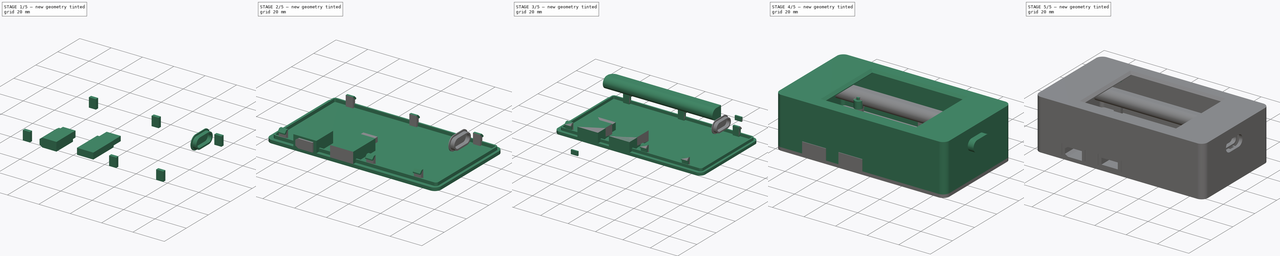
[diagram: build sequence overview — one tinted view per stage of 5, left to right]
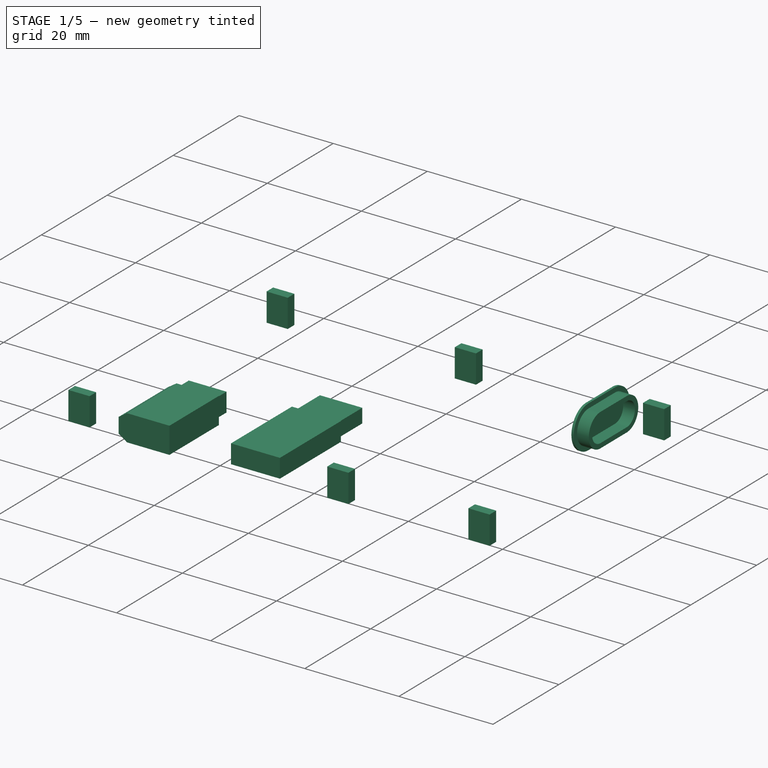
[diagram: stage 1 of 5 — iso view after this stage's code; geometry added in this stage tinted green]
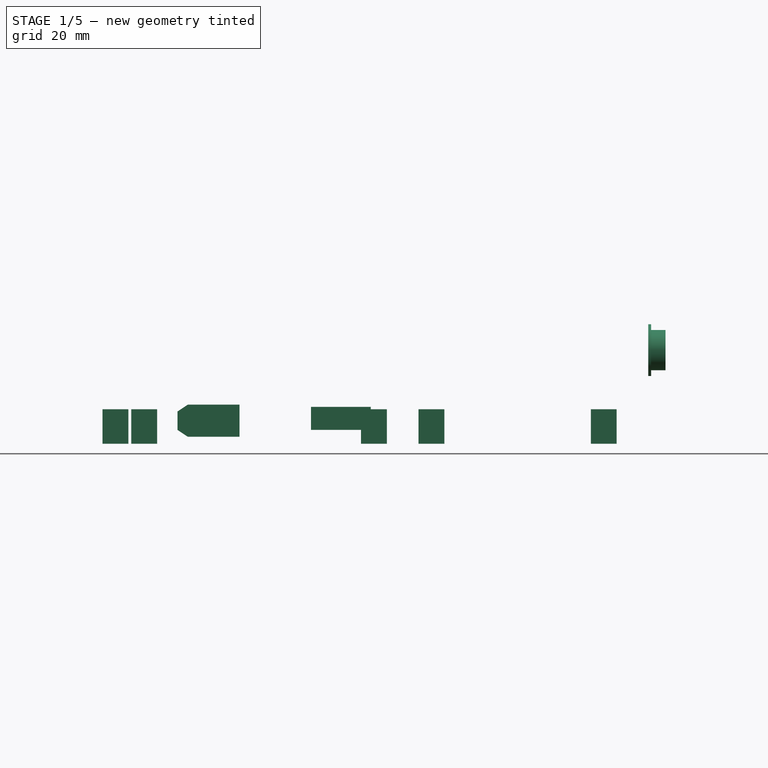
[diagram: stage 1 of 5 — front view after this stage's code; geometry added in this stage tinted green]
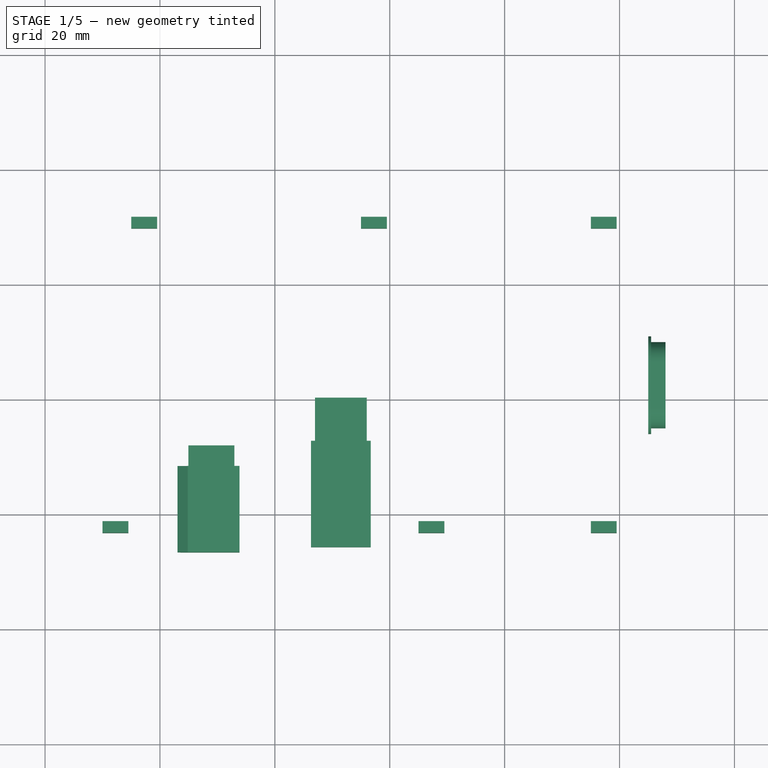
[diagram: stage 1 of 5 — top view after this stage's code; geometry added in this stage tinted green]
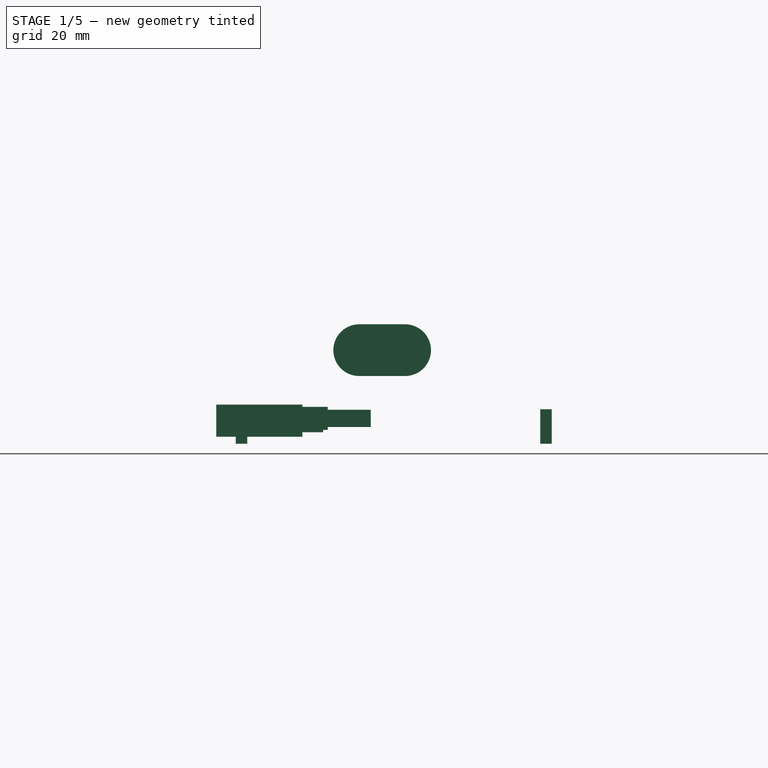
[diagram: stage 1 of 5 — right view after this stage's code; geometry added in this stage tinted green]
FCSTD DOCUMENT  (FreeCAD 1.0R39319 (Git))
Label: ServoTester
License: All rights reserved
LicenseURL: http://en.wikipedia.org/wiki/All_rights_reserved
objects: Part::Box×38, Part::MultiFuse×28, Part::Cut×10, Part::Cylinder×9, Part::Fillet×6, Part::Chamfer×4, Sketcher::SketchObject×3, Part::Extrusion×3, Part::Feature×1, Part::Sphere×1
note: 106 computed .brp shape members not serialized (recipe doc carries the construction recipe); baked Part::Feature solids carry a one-line shape summary decoded from their .brp

FEATURE [Sketcher::SketchObject] Sketch001
  ArcFitTolerance = 0
  FullyConstrained = true
  MakeInternals = false
  Placement = pos=(0,0,0) rot=(0.57735,0.57735,0.57735;2.0944rad)
  sketch-geometry (8):
    g0: LineSegment StartX=58.28 StartY=4.78 StartZ=0 EndX=66.28 EndY=4.78 EndZ=0
    g1: LineSegment StartX=58.28 StartY=11.78 StartZ=0 EndX=66.28 EndY=11.78 EndZ=0
    g2: ArcOfCircle CenterX=66.28 CenterY=8.28 CenterZ=0 NormalX=0 NormalY=0 NormalZ=1 AngleXU=0 Radius=3.5 StartAngle=4.71239 EndAngle=7.85398
    g3: ArcOfCircle CenterX=58.28 CenterY=8.28 CenterZ=0 NormalX=0 NormalY=0 NormalZ=1 AngleXU=0 Radius=3.5 StartAngle=1.5708 EndAngle=4.71239
    g4: ArcOfCircle CenterX=58.28 CenterY=8.28 CenterZ=0 NormalX=0 NormalY=0 NormalZ=1 AngleXU=0 Radius=2.5 StartAngle=1.5708 EndAngle=4.71239
    g5: ArcOfCircle CenterX=66.28 CenterY=8.28 CenterZ=0 NormalX=0 NormalY=0 NormalZ=1 AngleXU=0 Radius=2.5 StartAngle=4.71239 EndAngle=7.85398
    g6: LineSegment StartX=58.28 StartY=10.78 StartZ=0 EndX=66.28 EndY=10.78 EndZ=0
    g7: LineSegment StartX=58.28 StartY=5.78 StartZ=0 EndX=66.28 EndY=5.78 EndZ=0
  constraints (22):
    c: Horizontal(g0)
    c: Horizontal(g1)
    c: Equal(g1,g0)
    c: DistanceX(g0,g0) = 8
    c: DistanceX(g0,g1) = 0
    c: DistanceY(g0,g1) = 7
    c: Coincident(g2,g0)
    c: Coincident(g2,g1)
    c: Coincident(g3,g0)
    c: Coincident(g3,g1)
    c: Radius(g2) = 3.5
    c: Radius(g3) = 3.5
    c: DistanceX(g-1,g0) = 58.28
    c: DistanceY(g-1,g0) = 4.78
    c: Coincident(g4,g3)
    c: Coincident(g5,g2)
    c: Tangent(g6,g4) = 1.5708
    c: Tangent(g6,g5) = 1.5708
    c: Tangent(g7,g5) = -1.5708
    c: Tangent(g7,g4) = -1.5708
    c: Horizontal(g6)
    c: Radius(g4) = 2.5
FEATURE [Part::Extrusion] Extrude001
  Base = -> Sketch001
  Dir = (1,0,0)
  DirMode = 2
  FaceMakerClass = Part::FaceMakerBullseye
  FaceMakerMode = 3
  LengthFwd = 3
  LengthRev = 0
  Placement = pos=(145,0,5) rot=(0,0,1;0rad)
  Solid = true
  Symmetric = false
FEATURE [Part::Box] Box086  label="Cubo086"
  AttacherType = Attacher::AttachEngine3D
  Height = 6
  Length = 4.5
  Placement = pos=(-5,1,-5) rot=(0,0,1;0rad)
  Width = 2
FEATURE [Part::Box] Box087  label="Cubo087"
  AttacherType = Attacher::AttachEngine3D
  Height = 6
  Length = 4.5
  Placement = pos=(50,1,-5) rot=(0,0,1;0rad)
  Width = 2
FEATURE [Part::Box] Box088  label="Cubo088"
  AttacherType = Attacher::AttachEngine3D
  Height = 6
  Length = 4.5
  Placement = pos=(80,1,-5) rot=(0,0,1;0rad)
  Width = 2
FEATURE [Part::Box] Box089  label="Cubo089"
  AttacherType = Attacher::AttachEngine3D
  Height = 6
  Length = 4.5
  Placement = pos=(0,-2,-5) rot=(0,0,1;0rad)
  Width = 2
FEATURE [Part::Box] Box090  label="Cubo090"
  AttacherType = Attacher::AttachEngine3D
  Height = 6
  Length = 4.5
  Placement = pos=(40,-2,-5) rot=(0,0,1;0rad)
  Width = 2
FEATURE [Part::Box] Box091  label="Cubo091"
  AttacherType = Attacher::AttachEngine3D
  Height = 6
  Length = 4.5
  Placement = pos=(80,-2,-5) rot=(0,0,1;0rad)
  Width = 2
FEATURE [Part::Box] Box096  label="Cubo096"
  AttacherType = Attacher::AttachEngine3D
  Height = 5.6
  Length = 10.8
  Placement = pos=(19,0,0) rot=(0,0,1;0rad)
  Width = 15
FEATURE [Part::Box] Box097  label="Cubo097"
  AttacherType = Attacher::AttachEngine3D
  Height = 4
  Length = 8
  Placement = pos=(65,42,-1) rot=(0,0,1;0rad)
  Width = 10
FEATURE [Part::Chamfer] Chamfer007
  Base = -> Box096
  EdgeLinks = -> Box096 [Edge2,Edge4]
  Edges = 2 edges: [Edge2 r1=1.2 r2=1.8,Edge4 r1=1.2 r2=1.8]
  Placement = pos=(44.1,33.4,-1.8) rot=(0,0,1;0rad)
FEATURE [Part::MultiFuse] Fusion053
  Placement = pos=(55,35.8,2) rot=(0,0,1;0rad)
  Shapes = -> [Box088,Box086,Box087]
FEATURE [Part::MultiFuse] Fusion054
  Placement = pos=(55,91.8,2) rot=(0,0,1;0rad)
  Shapes = -> [Box091,Box089,Box090]
FEATURE [Part::MultiFuse] Fusion055
  Shapes = -> [Fusion053,Fusion054]
FEATURE [Part::MultiFuse] Fusion058
  Placement = pos=(-0.05,0,0) rot=(0,0,1;0rad)
  Shapes = -> [Box097,Chamfer007]
FEATURE [Part::Box] Box098  label="Cubo098"
  AttacherType = Attacher::AttachEngine3D
  Height = 4
  Length = 10.4
  Placement = pos=(0,0,-0.1) rot=(0,0,1;0rad)
  Width = 18.5
FEATURE [Part::Box] Box099  label="Cubo099"
  AttacherType = Attacher::AttachEngine3D
  Height = 3
  Length = 9
  Placement = pos=(0.7,8,0.4) rot=(0,0,1;0rad)
  Width = 18
FEATURE [Part::MultiFuse] Fusion060
  Placement = pos=(86.3,34.3,-0.5) rot=(0,0,1;0rad)
  Shapes = -> [Box099,Box098]
FEATURE [Part::MultiFuse] Fusion061
  Shapes = -> [Fusion060,Fusion058]
FEATURE [Sketcher::SketchObject] Sketch002
  ArcFitTolerance = 0
  FullyConstrained = true
  MakeInternals = false
  Placement = pos=(0,0,0) rot=(0.57735,0.57735,0.57735;2.0944rad)
  sketch-geometry (4):
    g0: LineSegment StartX=58.28 StartY=3.78 StartZ=0 EndX=66.28 EndY=3.78 EndZ=0
    g1: LineSegment StartX=58.28 StartY=12.78 StartZ=0 EndX=66.28 EndY=12.78 EndZ=0
    g2: ArcOfCircle CenterX=66.28 CenterY=8.28 CenterZ=0 NormalX=0 NormalY=0 NormalZ=1 AngleXU=0 Radius=4.5 StartAngle=4.71239 EndAngle=7.85398
    g3: ArcOfCircle CenterX=58.28 CenterY=8.28 CenterZ=0 NormalX=0 NormalY=0 NormalZ=1 AngleXU=0 Radius=4.5 StartAngle=1.5708 EndAngle=4.71239
  constraints (14):
    c: Horizontal(g0)
    c: Horizontal(g1)
    c: Equal(g1,g0)
    c: DistanceX(g0,g0) = 8
    c: DistanceX(g0,g1) = 0
    c: DistanceY(g0,g1) = 9
    c: Coincident(g2,g0)
    c: Coincident(g2,g1)
    c: Coincident(g3,g0)
    c: Coincident(g3,g1)
    c: Radius(g2) = 4.5
    c: Radius(g3) = 4.5
    c: DistanceX(g-1,g0) = 58.28
    c: DistanceY(g-1,g0) = 3.78
FEATURE [Part::Extrusion] Extrude002
  Base = -> Sketch002
  Dir = (1,0,0)
  DirMode = 2
  FaceMakerClass = Part::FaceMakerBullseye
  FaceMakerMode = 3
  LengthFwd = 0.5
  LengthRev = 0
  Placement = pos=(145,0,5) rot=(0,0,1;0rad)
  Solid = true
  Symmetric = false
FEATURE [Part::MultiFuse] Fusion062  label="USB Tap"
  Shapes = -> [Extrude001,Extrude002]
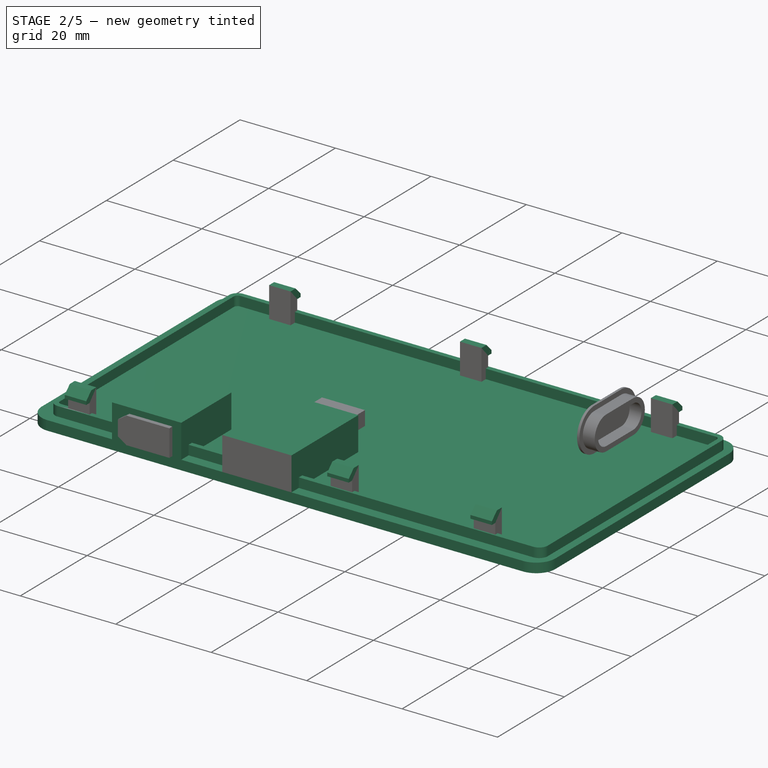
[diagram: stage 2 of 5 — iso view after this stage's code; geometry added in this stage tinted green]
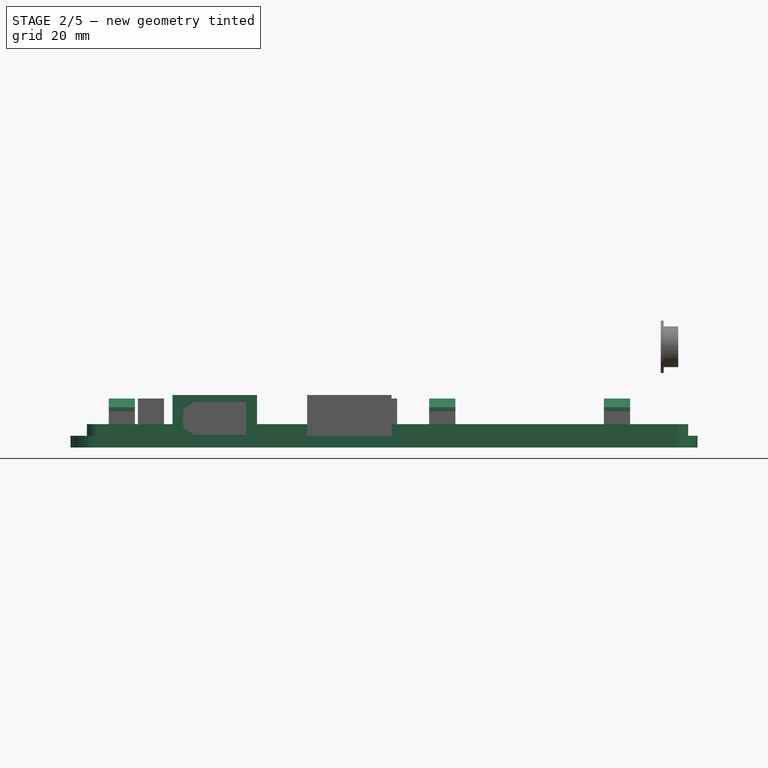
[diagram: stage 2 of 5 — front view after this stage's code; geometry added in this stage tinted green]
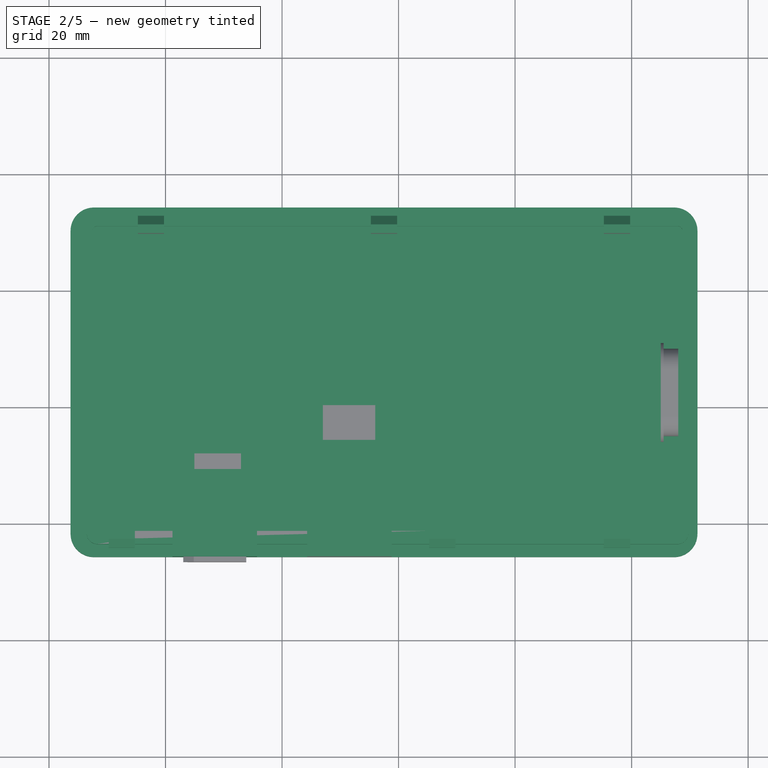
[diagram: stage 2 of 5 — top view after this stage's code; geometry added in this stage tinted green]
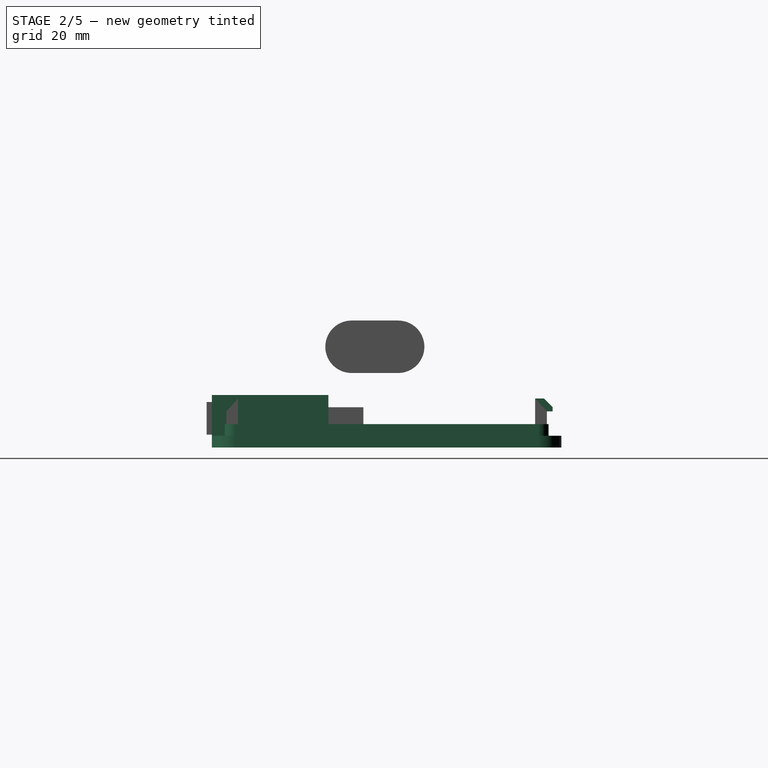
[diagram: stage 2 of 5 — right view after this stage's code; geometry added in this stage tinted green]
FEATURE [Part::Box] Box079  label="Cubo079"
  AttacherType = Attacher::AttachEngine3D
  Height = 2
  Length = 107.6
  Placement = pos=(43.7,34.3,-4) rot=(0,0,1;0rad)
  Width = 60
FEATURE [Part::Box] Box080  label="Cubo080"
  AttacherType = Attacher::AttachEngine3D
  Height = 2.2
  Length = 4.5
  Placement = pos=(-5,0,0.2) rot=(0,0,1;0rad)
  Width = 3
FEATURE [Part::Box] Box081  label="Cubo081"
  AttacherType = Attacher::AttachEngine3D
  Height = 2.2
  Length = 4.5
  Placement = pos=(50,0,0.2) rot=(0,0,1;0rad)
  Width = 3
FEATURE [Part::Box] Box082  label="Cubo082"
  AttacherType = Attacher::AttachEngine3D
  Height = 2.2
  Length = 4.5
  Placement = pos=(80,0,0.2) rot=(0,0,1;0rad)
  Width = 3
FEATURE [Part::Box] Box083  label="Cubo083"
  AttacherType = Attacher::AttachEngine3D
  Height = 2.2
  Length = 4.5
  Placement = pos=(0,-2,0.2) rot=(0,0,1;0rad)
  Width = 3
FEATURE [Part::Box] Box084  label="Cubo084"
  AttacherType = Attacher::AttachEngine3D
  Height = 2.2
  Length = 4.5
  Placement = pos=(40,-2,0.2) rot=(0,0,1;0rad)
  Width = 3
FEATURE [Part::Box] Box085  label="Cubo085"
  AttacherType = Attacher::AttachEngine3D
  Height = 2.2
  Length = 4.5
  Placement = pos=(80,-2,0.2) rot=(0,0,1;0rad)
  Width = 3
FEATURE [Part::Box] Box092  label="Cubo092"
  AttacherType = Attacher::AttachEngine3D
  Height = 2
  Length = 103.2
  Placement = pos=(48.7,34.3,-2) rot=(0,0,1;0rad)
  Width = 55.6
FEATURE [Part::Box] Box093  label="Cubo093"
  AttacherType = Attacher::AttachEngine3D
  Height = 2
  Length = 101.2
  Placement = pos=(49.7,35.3,-2) rot=(0,0,1;0rad)
  Width = 53.6
FEATURE [Part::Box] Box094  label="Cubo094"
  AttacherType = Attacher::AttachEngine3D
  Height = 7
  Length = 14.5
  Placement = pos=(61.2,34.3,-2) rot=(0,0,1;0rad)
  Width = 15
FEATURE [Part::Box] Box095  label="Cubo095"
  AttacherType = Attacher::AttachEngine3D
  Height = 7
  Length = 14.5
  Placement = pos=(84.3,34.3,-2) rot=(0,0,1;0rad)
  Width = 20
FEATURE [Part::Cut] Cut019
  Base = -> Box092
  Tool = -> Box093
FEATURE [Part::Fillet] Fillet015
  Base = -> Box079
  EdgeLinks = -> Box079 [Edge1,Edge3,Edge5,Edge7]
  Edges = 4 edges r=4: [Edge1,Edge3,Edge5,Edge7]
FEATURE [Part::Fillet] Fillet016
  Base = -> Cut019
  EdgeLinks = -> Cut019 [Edge1,Edge3,Edge6,Edge15,Edge21,Edge22,Edge23,Edge24]
  Edges = 8 edges: [Edge1 r=1.8,Edge3 r=1.8,Edge6 r=1.8,Edge15 r=1.8,Edge21 r=0.8,Edge22 r=0.8,Edge23 r=0.8,Edge24 r=0.8]
  Placement = pos=(-2.2,2.2,0) rot=(0,0,1;0rad)
FEATURE [Part::MultiFuse] Fusion050
  Placement = pos=(55,35.8,2) rot=(0,0,1;0rad)
  Shapes = -> [Box082,Box080,Box081]
FEATURE [Part::MultiFuse] Fusion051
  Placement = pos=(55,91.8,2) rot=(0,0,1;0rad)
  Shapes = -> [Box085,Box083,Box084]
FEATURE [Part::MultiFuse] Fusion052
  Shapes = -> [Fusion050,Fusion051]
FEATURE [Part::MultiFuse] Fusion056
  Shapes = -> [Fusion052,Fusion055]
FEATURE [Part::Chamfer] Chamfer006
  Base = -> Fusion056
  EdgeLinks = -> Fusion056 [Edge9,Edge39,Edge69,Edge112,Edge142,Edge172]
  Edges = 6 edges r=1.5: [Edge9,Edge39,Edge69,Edge112,Edge142,Edge172]
  Placement = pos=(0.25,0,0) rot=(0,0,1;0rad)
FEATURE [Part::MultiFuse] Fusion057
  Refine = true
  Shapes = -> [Fillet016,Chamfer006,Fillet015]
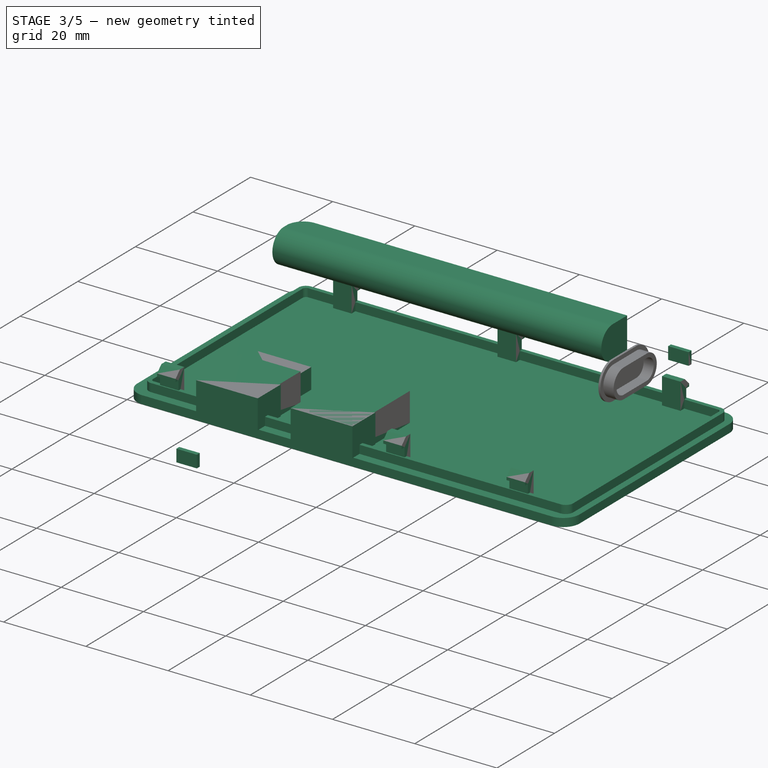
[diagram: stage 3 of 5 — iso view after this stage's code; geometry added in this stage tinted green]
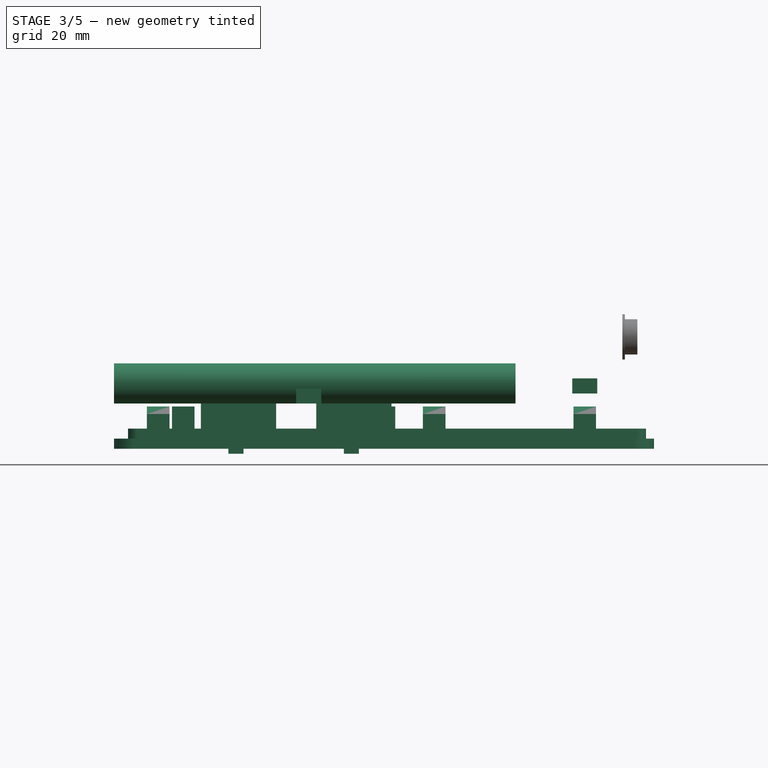
[diagram: stage 3 of 5 — front view after this stage's code; geometry added in this stage tinted green]
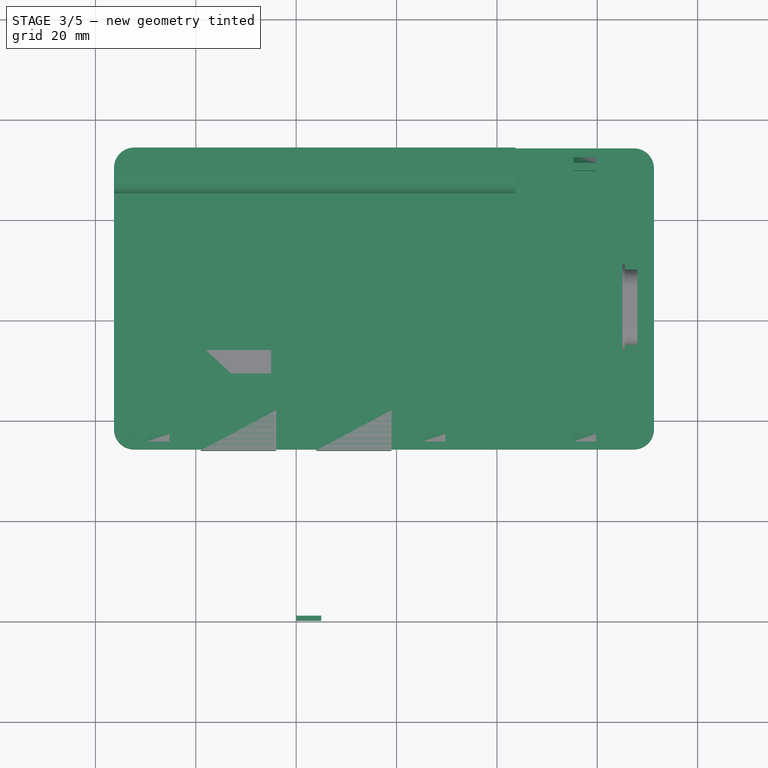
[diagram: stage 3 of 5 — top view after this stage's code; geometry added in this stage tinted green]
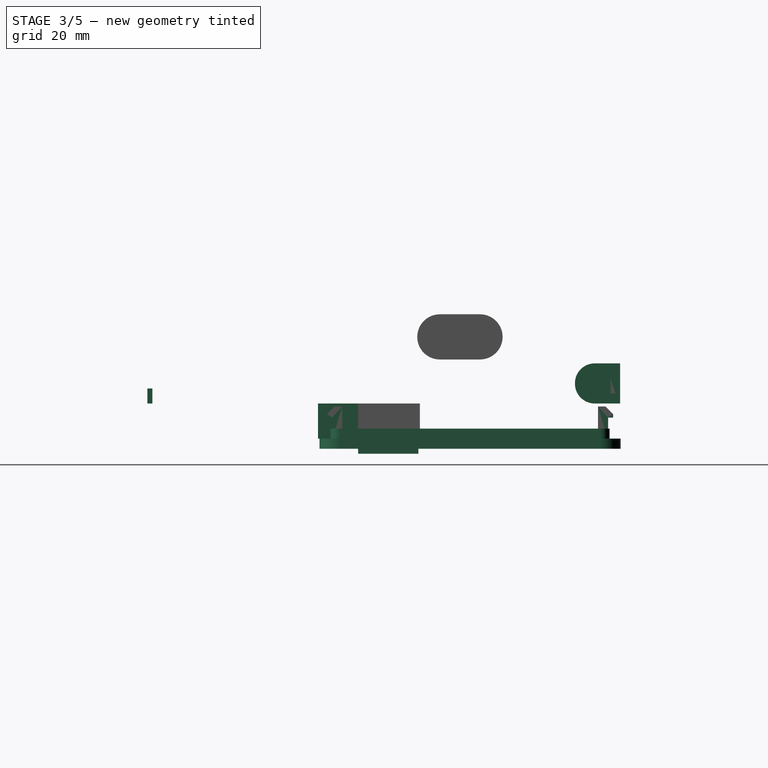
[diagram: stage 3 of 5 — right view after this stage's code; geometry added in this stage tinted green]
FEATURE [Part::Box] Box005  label="Cubo005"
  AttacherType = Attacher::AttachEngine3D
  Height = 3
  Length = 5
  Placement = pos=(80,0,0) rot=(0,0,1;0rad)
  Width = 1
FEATURE [Part::Box] Box006  label="Cubo006"
  AttacherType = Attacher::AttachEngine3D
  Height = 3
  Length = 5
  Width = 1
FEATURE [Part::Box] Box007  label="Cubo007"
  AttacherType = Attacher::AttachEngine3D
  Height = 3
  Length = 5
  Placement = pos=(40,0,0) rot=(0,0,1;0rad)
  Width = 1
FEATURE [Part::Box] Box008  label="Cubo008"
  AttacherType = Attacher::AttachEngine3D
  Height = 3
  Length = 5
  Placement = pos=(80,0,0) rot=(0,0,1;0rad)
  Width = 1
FEATURE [Part::MultiFuse] Fusion008
  Placement = pos=(55,92.3,2) rot=(0,0,1;0rad)
  Shapes = -> [Box008,Box006,Box007]
FEATURE [Part::Box] Box009  label="Cubo009"
  AttacherType = Attacher::AttachEngine3D
  Height = 7
  Length = 15
  Width = 8
FEATURE [Part::Box] Box010  label="Cubo010"
  AttacherType = Attacher::AttachEngine3D
  Height = 5
  Length = 13
  Placement = pos=(1,8,1) rot=(0,0,1;0rad)
  Width = 12
FEATURE [Part::Box] Box011  label="Cubo011"
  AttacherType = Attacher::AttachEngine3D
  Height = 4
  Length = 3
  Placement = pos=(5.5,8,-3) rot=(0,0,1;0rad)
  Width = 12
FEATURE [Part::MultiFuse] Fusion010
  Shapes = -> [Box009,Box010,Box011]
FEATURE [Part::Box] Box012  label="Cubo012"
  AttacherType = Attacher::AttachEngine3D
  Height = 7
  Length = 15
  Width = 8
FEATURE [Part::Box] Box013  label="Cubo013"
  AttacherType = Attacher::AttachEngine3D
  Height = 5
  Length = 13
  Placement = pos=(1,8,1) rot=(0,0,1;0rad)
  Width = 12
FEATURE [Part::Box] Box014  label="Cubo014"
  AttacherType = Attacher::AttachEngine3D
  Height = 4
  Length = 3
  Placement = pos=(5.5,8,-3) rot=(0,0,1;0rad)
  Width = 12
FEATURE [Part::MultiFuse] Fusion011
  Placement = pos=(23,0,0) rot=(0,0,1;0rad)
  Shapes = -> [Box012,Box013,Box014]
FEATURE [Part::MultiFuse] Fusion012
  Placement = pos=(61,34,-7) rot=(0,0,1;0rad)
  Shapes = -> [Fusion010,Fusion011]
FEATURE [Part::Box] Box076  label="Cubo076"
  AttacherType = Attacher::AttachEngine3D
  Height = 8
  Length = 80
  Width = 9
FEATURE [Part::Fillet] Fillet012
  Base = -> Box076
  EdgeLinks = -> Box076 [Edge3,Edge9,Edge10]
  Edges = 3 edges: [Edge3 r=4,Edge9 r=3.95,Edge10 r=3.95]
  Placement = pos=(43.71,85.2,0) rot=(0,0,1;0rad)
FEATURE [Part::Sphere] Sphere  label="Sfera"
  Angle1 = -90
  Angle2 = 90
  Angle3 = 360
  AttacherType = Attacher::AttachEngine3D
  Placement = pos=(50,87,4) rot=(0,0,1;0rad)
  Radius = 1.5
FEATURE [Part::MultiFuse] Fusion059
  Shapes = -> [Fusion057,Box094,Box095]
FEATURE [Part::Cut] Cut020  label="Base"
  Base = -> Fusion059
  Placement = pos=(0,0,-5) rot=(0,0,1;0rad)
  Tool = -> Fusion061
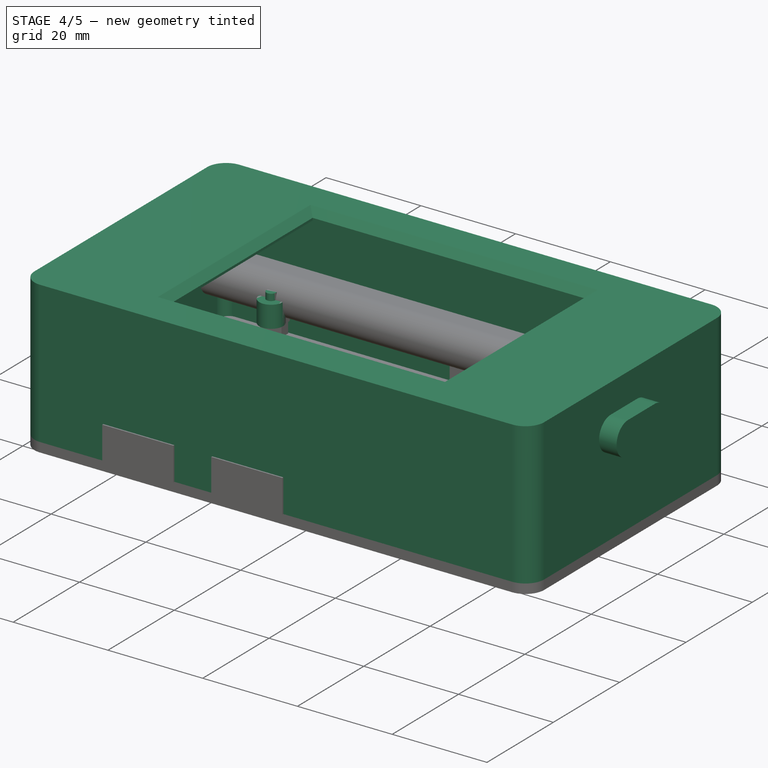
[diagram: stage 4 of 5 — iso view after this stage's code; geometry added in this stage tinted green]
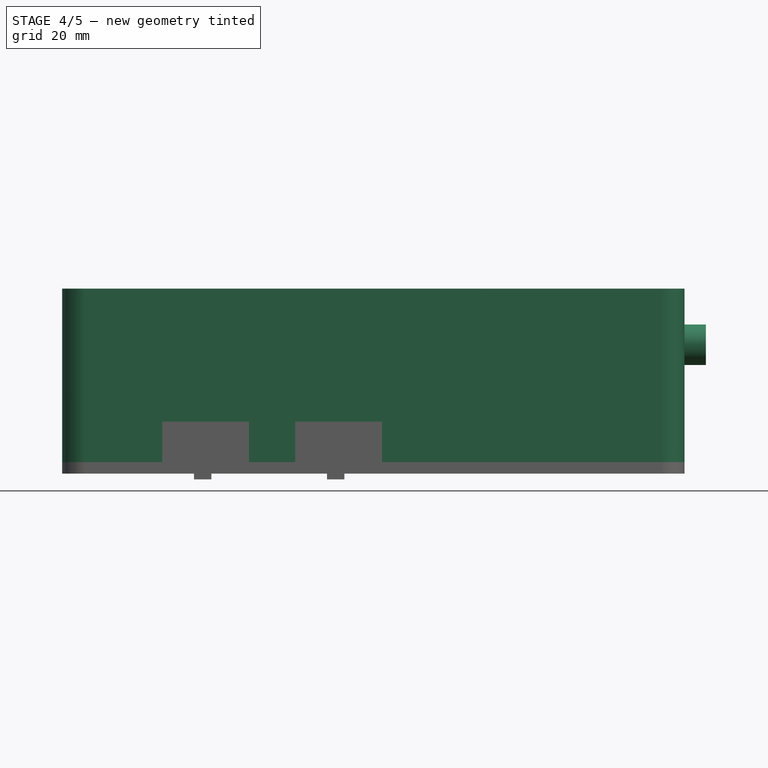
[diagram: stage 4 of 5 — front view after this stage's code; geometry added in this stage tinted green]
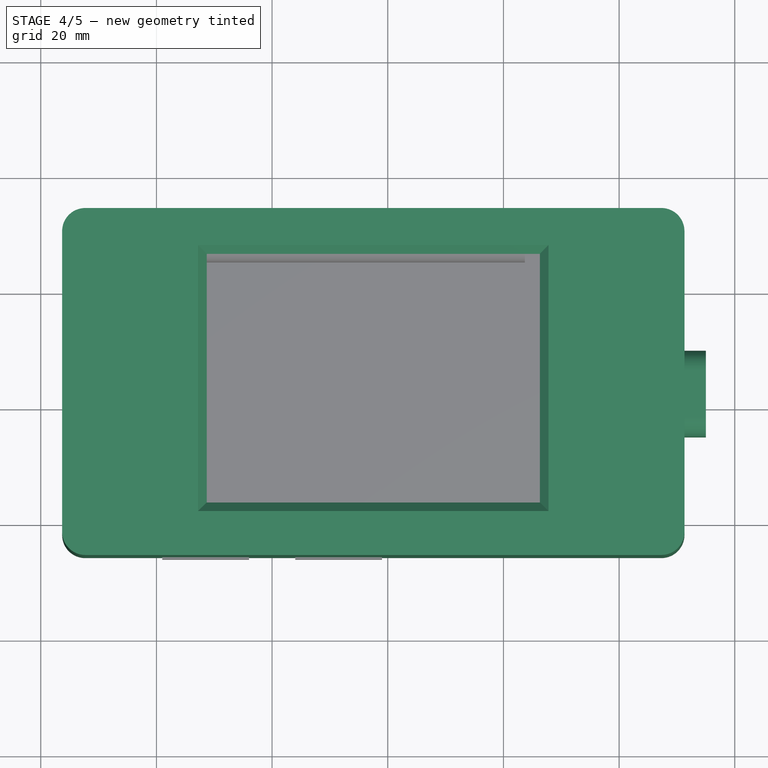
[diagram: stage 4 of 5 — top view after this stage's code; geometry added in this stage tinted green]
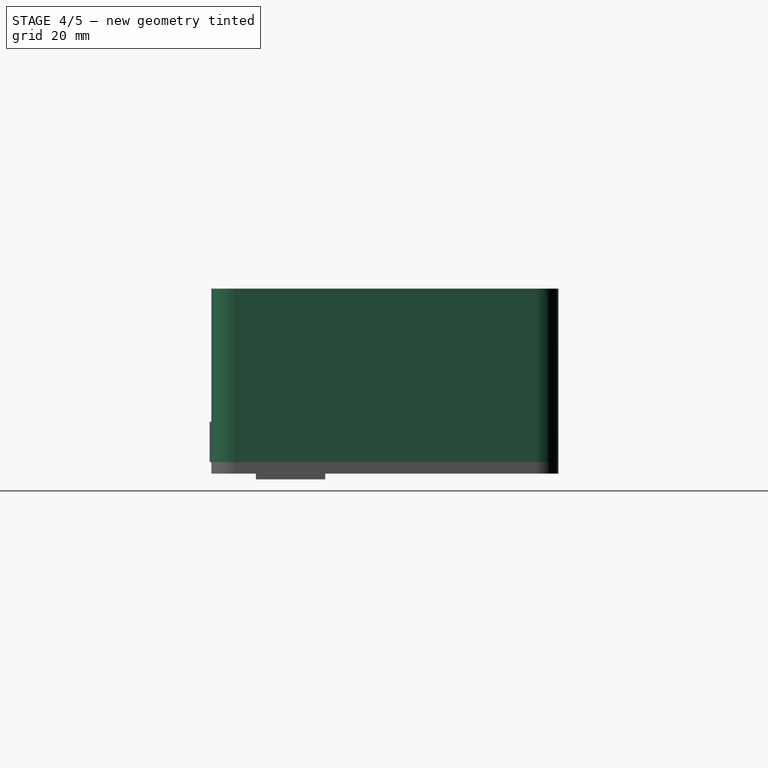
[diagram: stage 4 of 5 — right view after this stage's code; geometry added in this stage tinted green]
FEATURE [Part::Feature] Feature  label="Cheap_Yellow_Display_by_mbrembati"
  Placement = pos=(0,0,14.8) rot=(0,0,1;0rad)
  shape: bbox 85.61 x 50 x 10.6 mm, 915 faces, 60 solids (baked)
FEATURE [Part::Box] Box  label="Cubo"
  AttacherType = Attacher::AttachEngine3D
  Height = 20
  Length = 57.6
  Placement = pos=(68.7,43.4,10) rot=(0,0,1;0rad)
  Width = 43
FEATURE [Part::Cylinder] Cylinder003  label="Cilindro003"
  Angle = 360
  AttacherType = Attacher::AttachEngine3D
  FirstAngle = 0
  Height = 4.6
  Placement = pos=(60.75,85.25,-0.2) rot=(0,0,1;0rad)
  Radius = 2.5
  SecondAngle = 0
FEATURE [Part::Cylinder] Cylinder004  label="Cilindro004"
  Angle = 360
  AttacherType = Attacher::AttachEngine3D
  FirstAngle = 0
  Height = 6
  Placement = pos=(60.75,43.4,0) rot=(0,0,1;0rad)
  Radius = 1
  SecondAngle = 0
FEATURE [Part::Cylinder] Cylinder005  label="Cilindro005"
  Angle = 360
  AttacherType = Attacher::AttachEngine3D
  FirstAngle = 0
  Height = 6
  Placement = pos=(60.75,85.25,0) rot=(0,0,1;0rad)
  Radius = 1
  SecondAngle = 0
FEATURE [Part::Cylinder] Cylinder006  label="Cilindro006"
  Angle = 360
  AttacherType = Attacher::AttachEngine3D
  FirstAngle = 0
  Height = 6
  Placement = pos=(60.75,43.4,0) rot=(0,0,1;0rad)
  Radius = 1
  SecondAngle = 0
FEATURE [Part::Cylinder] Cylinder007  label="Cilindro007"
  Angle = 360
  AttacherType = Attacher::AttachEngine3D
  FirstAngle = 0
  Height = 6
  Placement = pos=(60.75,85.25,0) rot=(0,0,1;0rad)
  Radius = 1
  SecondAngle = 0
FEATURE [Part::MultiFuse] Fusion003
  Shapes = -> [Cylinder004,Cylinder005]
FEATURE [Part::MultiFuse] Fusion004
  Placement = pos=(78.25,0,0) rot=(0,0,1;0rad)
  Shapes = -> [Cylinder006,Cylinder007]
FEATURE [Part::MultiFuse] Fusion005
  Placement = pos=(0,0,-0.2) rot=(0,0,1;0rad)
  Shapes = -> [Fusion003,Fusion004]
FEATURE [Part::Box] Box001  label="Cubo001"
  AttacherType = Attacher::AttachEngine3D
  Height = 30
  Length = 107.6
  Placement = pos=(48.7,34.3,-7) rot=(0,0,1;0rad)
  Width = 60
FEATURE [Part::Box] Box002  label="Cubo002"
  AttacherType = Attacher::AttachEngine3D
  Height = 30
  Length = 103.6
  Placement = pos=(50.7,36.3,-9) rot=(0,0,1;0rad)
  Width = 56
FEATURE [Part::Cut] Cut001
  Base = -> Box001
  Tool = -> Box002
FEATURE [Part::Fillet] Fillet
  Base = -> Cut001
  EdgeLinks = -> Cut001 [Edge1,Edge3,Edge6,Edge11,Edge17,Edge18,Edge19,Edge20,Edge21,Edge22,Edge23,Edge24]
  Edges = 12 edges: [Edge1 r=4,Edge3 r=4,Edge6 r=4,Edge11 r=4,Edge17 r=2,Edge18 r=2,Edge19 r=2,Edge20 r=2,Edge21 r=2,Edge22 r=2,Edge23 r=2,Edge24 r=2]
  Placement = pos=(-5,0,0) rot=(0,0,1;0rad)
FEATURE [Part::Cut] Cut002
  Base = -> Fillet
  Tool = -> Box
FEATURE [Part::Chamfer] Chamfer
  Base = -> Cut002
  EdgeLinks = -> Cut002 [Edge12,Edge13,Edge14,Edge15]
  Edges = 4 edges r=1.5: [Edge12,Edge13,Edge14,Edge15]
FEATURE [Sketcher::SketchObject] Sketch
  ArcFitTolerance = 0
  FullyConstrained = true
  MakeInternals = false
  Placement = pos=(0,0,0) rot=(0.57735,0.57735,0.57735;2.0944rad)
  sketch-geometry (4):
    g0: LineSegment StartX=58.28 StartY=4.78 StartZ=0 EndX=66.28 EndY=4.78 EndZ=0
    g1: LineSegment StartX=58.28 StartY=11.78 StartZ=0 EndX=66.28 EndY=11.78 EndZ=0
    g2: ArcOfCircle CenterX=66.28 CenterY=8.28 CenterZ=0 NormalX=0 NormalY=0 NormalZ=1 AngleXU=0 Radius=3.5 StartAngle=4.71239 EndAngle=7.85398
    g3: ArcOfCircle CenterX=58.28 CenterY=8.28 CenterZ=0 NormalX=0 NormalY=0 NormalZ=1 AngleXU=0 Radius=3.5 StartAngle=1.5708 EndAngle=4.71239
  constraints (14):
    c: Horizontal(g0)
    c: Horizontal(g1)
    c: Equal(g1,g0)
    c: DistanceX(g0,g0) = 8
    c: DistanceX(g0,g1) = 0
    c: DistanceY(g0,g1) = 7
    c: Coincident(g2,g0)
    c: Coincident(g2,g1)
    c: Coincident(g3,g0)
    c: Coincident(g3,g1)
    c: Radius(g2) = 3.5
    c: Radius(g3) = 3.5
    c: DistanceX(g-1,g0) = 58.28
    c: DistanceY(g-1,g0) = 4.78
FEATURE [Part::Extrusion] Extrude
  Base = -> Sketch
  Dir = (1,0,0)
  DirMode = 2
  FaceMakerClass = Part::FaceMakerBullseye
  FaceMakerMode = 3
  LengthFwd = 10
  LengthRev = 0
  Placement = pos=(145,0,5) rot=(0,0,1;0rad)
  Solid = true
  Symmetric = false
FEATURE [Part::Box] Box003  label="Cubo003"
  AttacherType = Attacher::AttachEngine3D
  Height = 3
  Length = 5
  Placement = pos=(-5,0,0) rot=(0,0,1;0rad)
  Width = 1
FEATURE [Part::Box] Box004  label="Cubo004"
  AttacherType = Attacher::AttachEngine3D
  Height = 3
  Length = 5
  Placement = pos=(50,0,0) rot=(0,0,1;0rad)
  Width = 1
FEATURE [Part::MultiFuse] Fusion007
  Placement = pos=(55,35.3,2) rot=(0,0,1;0rad)
  Shapes = -> [Box005,Box003,Box004]
FEATURE [Part::MultiFuse] Fusion009
  Placement = pos=(0,0,-5) rot=(0,0,1;0rad)
  Shapes = -> [Fusion007,Fusion008]
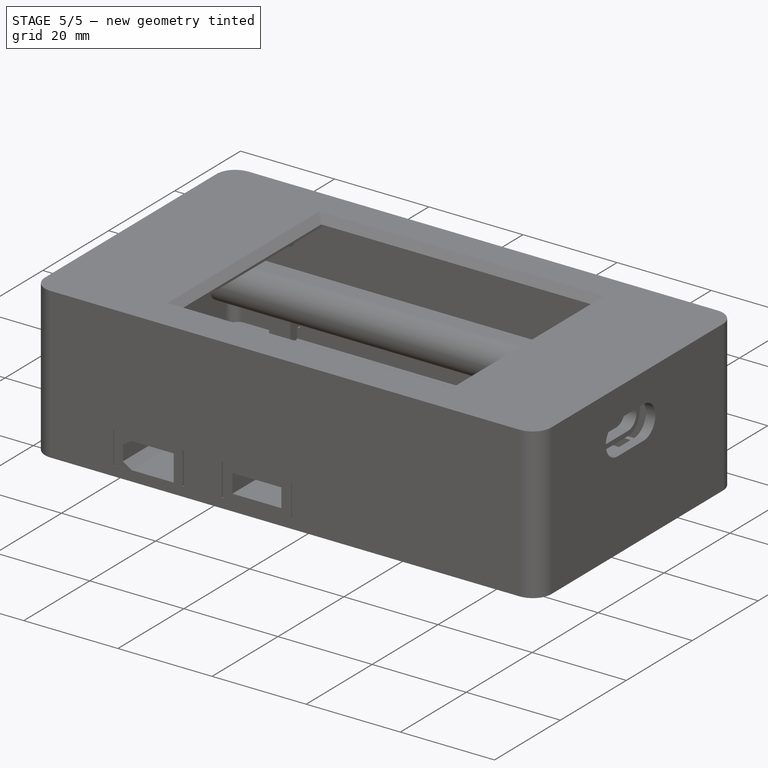
[diagram: stage 5 of 5 — iso view after this stage's code; geometry added in this stage tinted green]
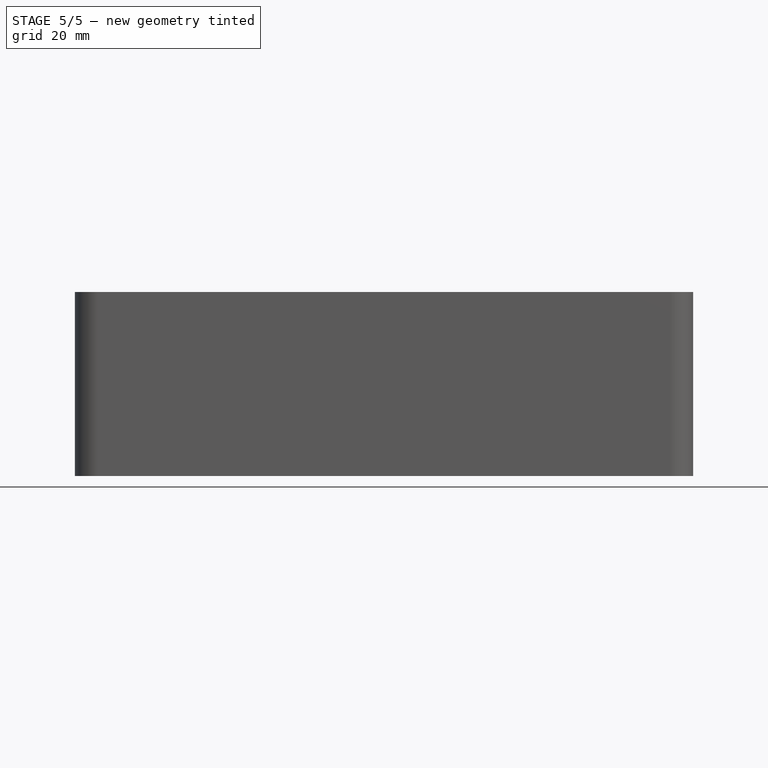
[diagram: stage 5 of 5 — front view after this stage's code; geometry added in this stage tinted green]
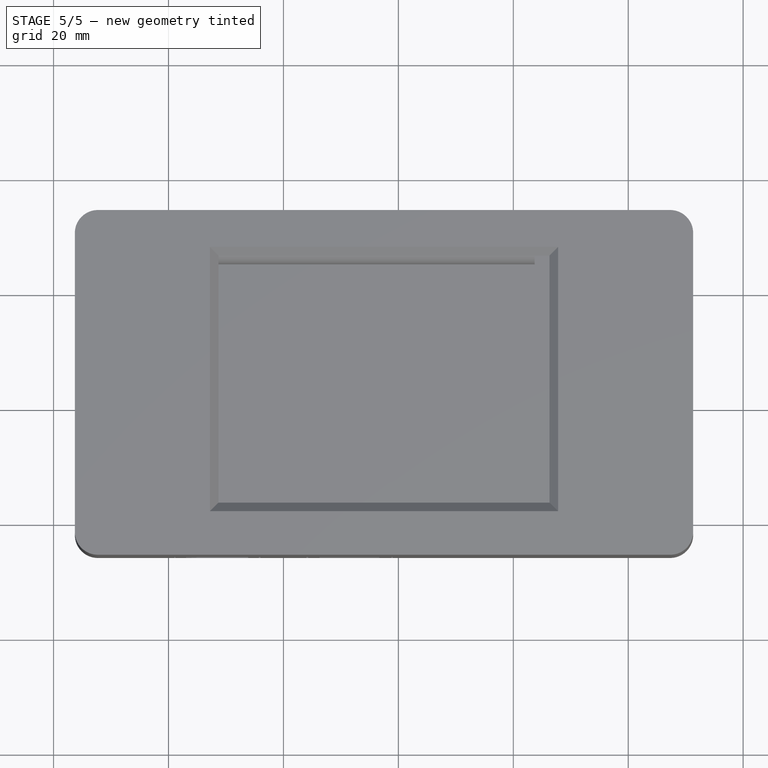
[diagram: stage 5 of 5 — top view after this stage's code; geometry added in this stage tinted green]
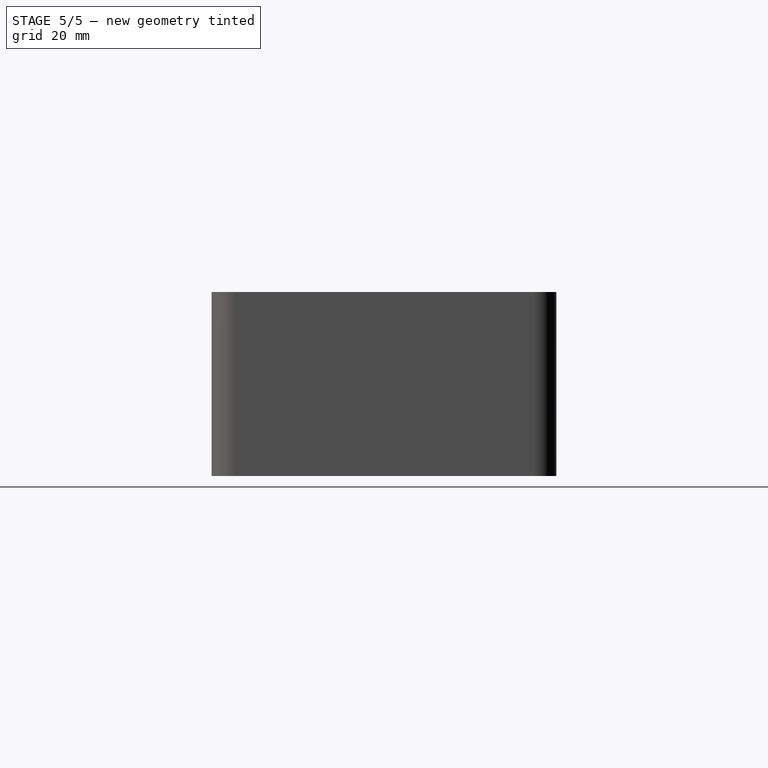
[diagram: stage 5 of 5 — right view after this stage's code; geometry added in this stage tinted green]
FEATURE [Part::Cylinder] Cylinder  label="Cilindro"
  Angle = 360
  AttacherType = Attacher::AttachEngine3D
  FirstAngle = 0
  Height = 4.6
  Placement = pos=(60.75,43.4,-0.2) rot=(0,0,1;0rad)
  Radius = 2.5
  SecondAngle = 0
FEATURE [Part::Cylinder] Cylinder001  label="Cilindro001"
  Angle = 360
  AttacherType = Attacher::AttachEngine3D
  FirstAngle = 0
  Height = 4.6
  Placement = pos=(60.75,85.25,-0.2) rot=(0,0,1;0rad)
  Radius = 2.5
  SecondAngle = 0
FEATURE [Part::MultiFuse] Fusion
  Shapes = -> [Cylinder,Cylinder001]
FEATURE [Part::Cylinder] Cylinder002  label="Cilindro002"
  Angle = 360
  AttacherType = Attacher::AttachEngine3D
  FirstAngle = 0
  Height = 4.6
  Placement = pos=(60.75,43.4,-0.2) rot=(0,0,1;0rad)
  Radius = 2.5
  SecondAngle = 0
FEATURE [Part::MultiFuse] Fusion001
  Placement = pos=(78.25,0,0) rot=(0,0,1;0rad)
  Shapes = -> [Cylinder002,Cylinder003]
FEATURE [Part::MultiFuse] Fusion002
  Shapes = -> [Fusion,Fusion001]
FEATURE [Part::Cut] Cut
  Base = -> Fusion002
  Placement = pos=(0,0,16.6) rot=(0,0,1;0rad)
  Tool = -> Fusion005
FEATURE [Part::MultiFuse] Fusion006
  Shapes = -> [Cut,Chamfer]
FEATURE [Part::Fillet] Fillet001
  Base = -> Fusion006
  EdgeLinks = -> Fusion006 [Edge3,Edge9,Edge14,Edge15]
  Edges = 4 edges r=2: [Edge3,Edge9,Edge14,Edge15]
FEATURE [Part::Cut] Cut003
  Base = -> Fillet001
  Tool = -> Extrude
FEATURE [Part::Cut] Cut004
  Base = -> Cut003
  Tool = -> Fusion009
FEATURE [Part::Cut] Cut005
  Base = -> Cut004
  Tool = -> Fusion012
FEATURE [Part::Box] Box077  label="Cubo077"
  AttacherType = Attacher::AttachEngine3D
  Height = 5.5
  Length = 12
  Placement = pos=(0,0.25,-0.25) rot=(0,0,1;0rad)
  Width = 7.6
FEATURE [Part::Fillet] Fillet013
  Base = -> Box077
  EdgeLinks = -> Box077 [Edge3,Edge9,Edge10]
  Edges = 3 edges: [Edge3 r=4,Edge9 r=2.5,Edge10 r=2.5]
FEATURE [Part::Cylinder] Cylinder016  label="Cilindro016"
  Angle = 360
  AttacherType = Attacher::AttachEngine3D
  FirstAngle = 0
  Height = 90
  Placement = pos=(12,2.75,2.5) rot=(0,1,0;1.5708rad)
  Radius = 2.65
  SecondAngle = 0
FEATURE [Part::MultiFuse] Fusion047
  Placement = pos=(43.7,86.7,1.5) rot=(0,0,1;0rad)
  Shapes = -> [Fillet013,Cylinder016]
FEATURE [Part::MultiFuse] Fusion048
  Shapes = -> [Cut005,Fillet012]
FEATURE [Part::Cut] Cut017
  Base = -> Fusion048
  Tool = -> Fusion047
FEATURE [Part::Cut] Cut018
  Base = -> Cut017
  Tool = -> Sphere
FEATURE [Part::Chamfer] Chamfer005  label="Box"
  Base = -> Cut018
  EdgeLinks = -> Cut018 [Edge6,Edge230,Edge231,Edge232]
  Edges = 4 edges r=0.4: [Edge6,Edge230,Edge231,Edge232]
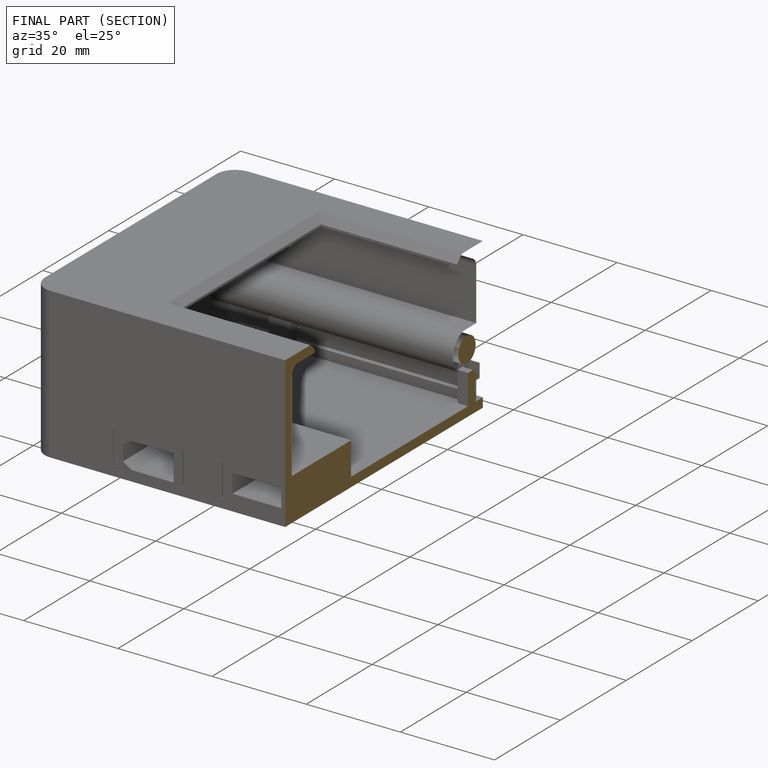
[diagram: finished part — half-section view (interior)]
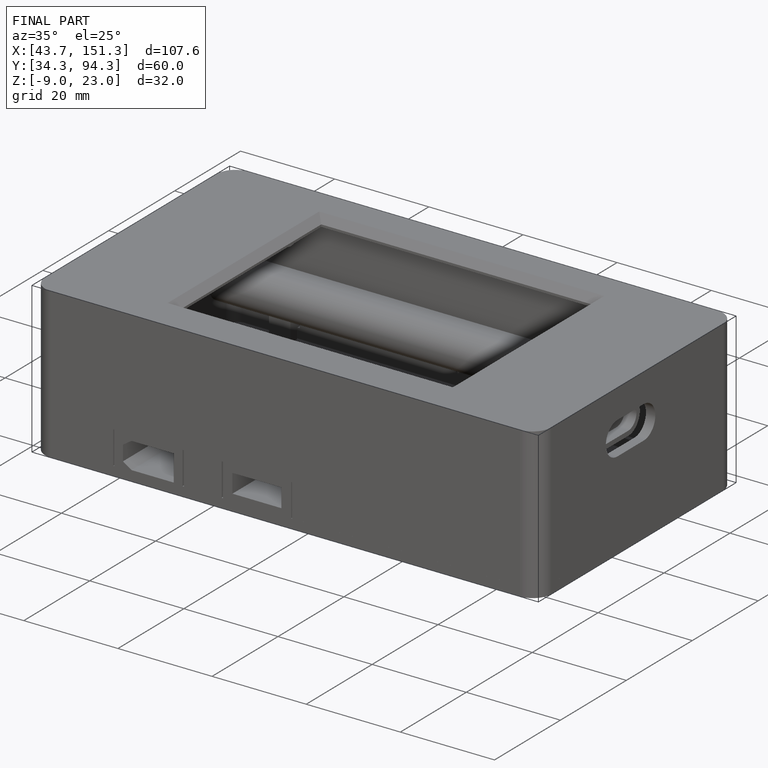
[diagram: finished part — iso view with bounding-box wireframe]
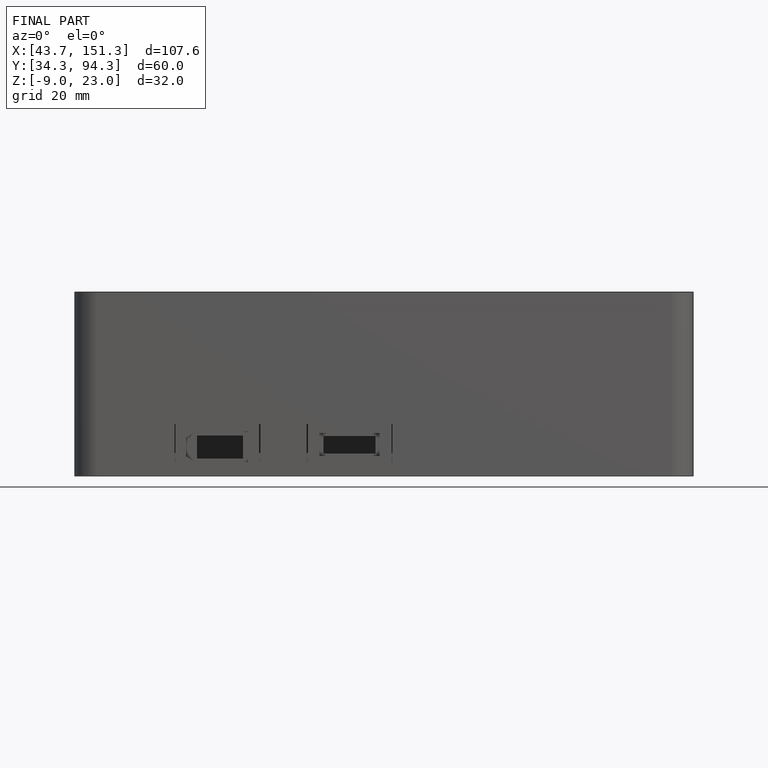
[diagram: finished part — front view with bounding-box wireframe]
